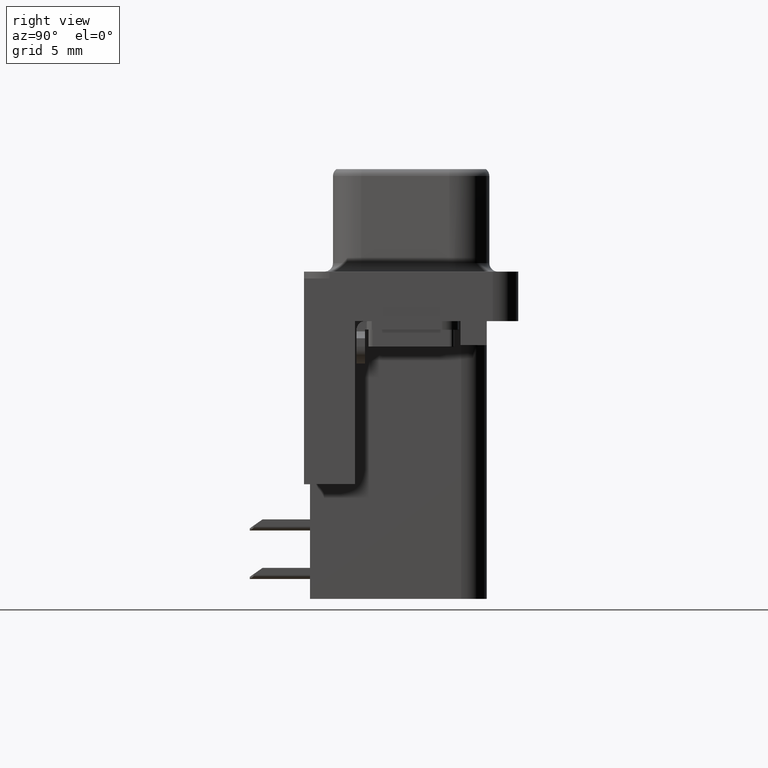
[diagram: clean part render]
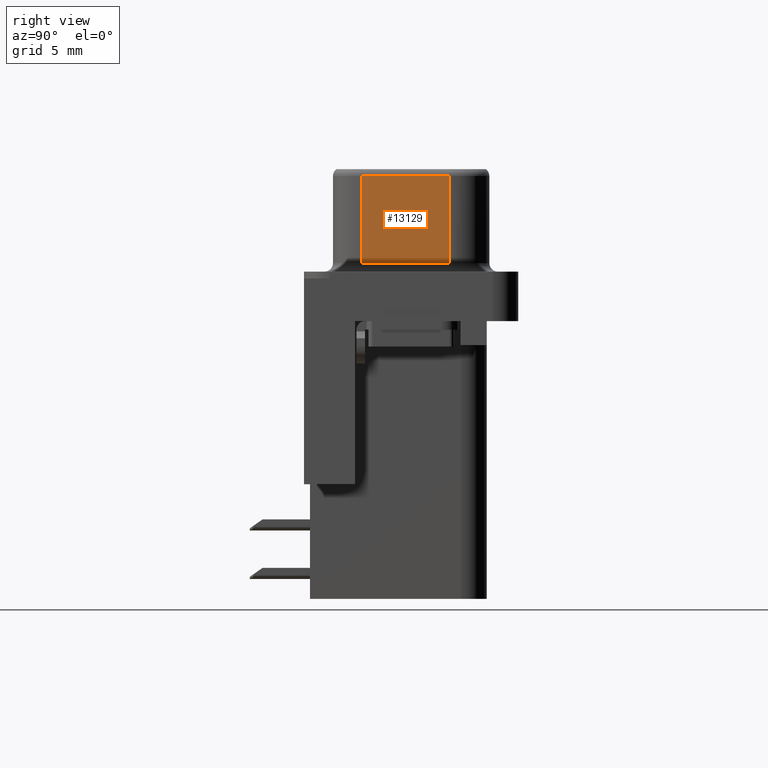
[diagram: same view with one face highlighted and labeled with its STEP entity id]
A machine part, right view. The second image highlights one B-rep face of the part: STEP entity #13129.
In plain terms, the highlighted planar face has unit normal (-0.9848, 0.1736, 0).
Its self-contained STEP definition (entity closure, byte-faithful):
#21 = CARTESIAN_POINT ( 'NONE',  ( 21.32461550602442200, 2.232703644666148300, 6.500000000000000000 ) ) ;
#278 = DIRECTION ( 'NONE',  ( -0.0000000000000000000, -0.0000000000000000000, -1.000000000000000000 ) ) ;
#1113 = DIRECTION ( 'NONE',  ( -0.1736481776669240900, -0.9848077530122092400, 0.0000000000000000000 ) ) ;
#1450 = VERTEX_POINT ( 'NONE', #4552 ) ;
#1752 = VECTOR ( 'NONE', #6478, 1000.000000000000000 ) ;
#2418 = CARTESIAN_POINT ( 'NONE',  ( 21.32461550602442200, 2.232703644666148300, 0.8999999999999998000 ) ) ;
#3370 = CARTESIAN_POINT ( 'NONE',  ( 21.32461550602442200, 2.232703644666148300, 0.8999999999999998000 ) ) ;
#4282 = CARTESIAN_POINT ( 'NONE',  ( 20.41476828556877600, -2.927296355333850900, 0.8999999999999998000 ) ) ;
#4552 = CARTESIAN_POINT ( 'NONE',  ( 21.32461550602442200, 2.232703644666148300, 6.000000000000000000 ) ) ;
#4631 = FACE_OUTER_BOUND ( 'NONE', #14023, .T. ) ;
#4686 = LINE ( 'NONE', #12882, #1752 ) ;
#4978 = VERTEX_POINT ( 'NONE', #3370 ) ;
#5037 = EDGE_CURVE ( 'NONE', #6297, #4978, #11294, .T. ) ;
#5419 = PLANE ( 'NONE',  #10755 ) ;
#5442 = ORIENTED_EDGE ( 'NONE', *, *, #10040, .T. ) ;
#6297 = VERTEX_POINT ( 'NONE', #4282 ) ;
#6478 = DIRECTION ( 'NONE',  ( -0.0000000000000000000, -0.0000000000000000000, -1.000000000000000000 ) ) ;
#6836 = CARTESIAN_POINT ( 'NONE',  ( 21.32461550602442200, 2.232703644666148300, 6.500000000000000000 ) ) ;
#7080 = EDGE_CURVE ( 'NONE', #7484, #6297, #4686, .T. ) ;
#7484 = VERTEX_POINT ( 'NONE', #10415 ) ;
#7634 = DIRECTION ( 'NONE',  ( -0.9848077530122092400, 0.1736481776669240900, 0.0000000000000000000 ) ) ;
#7814 = ORIENTED_EDGE ( 'NONE', *, *, #5037, .T. ) ;
#8032 = EDGE_CURVE ( 'NONE', #1450, #4978, #9705, .T. ) ;
#9630 = ORIENTED_EDGE ( 'NONE', *, *, #8032, .F. ) ;
#9705 = LINE ( 'NONE', #6836, #12881 ) ;
#9750 = LINE ( 'NONE', #13730, #12266 ) ;
#9934 = DIRECTION ( 'NONE',  ( 0.1736481776669240900, 0.9848077530122092400, -0.0000000000000000000 ) ) ;
#10040 = EDGE_CURVE ( 'NONE', #1450, #7484, #9750, .T. ) ;
#10383 = ORIENTED_EDGE ( 'NONE', *, *, #7080, .T. ) ;
#10415 = CARTESIAN_POINT ( 'NONE',  ( 20.41476828556877600, -2.927296355333850900, 6.000000000000000000 ) ) ;
#10755 = AXIS2_PLACEMENT_3D ( 'NONE', #21, #7634, #1113 ) ;
#11294 = LINE ( 'NONE', #2418, #11630 ) ;
#11552 = DIRECTION ( 'NONE',  ( -0.1736481776669240900, -0.9848077530122092400, -0.0000000000000000000 ) ) ;
#11630 = VECTOR ( 'NONE', #9934, 999.9999999999998900 ) ;
#12266 = VECTOR ( 'NONE', #11552, 999.9999999999998900 ) ;
#12881 = VECTOR ( 'NONE', #278, 1000.000000000000000 ) ;
#12882 = CARTESIAN_POINT ( 'NONE',  ( 20.41476828556877600, -2.927296355333850900, 6.500000000000000000 ) ) ;
#13129 = ADVANCED_FACE ( 'NONE', ( #4631 ), #5419, .F. ) ;
#13730 = CARTESIAN_POINT ( 'NONE',  ( 21.32461550602442200, 2.232703644666148300, 6.000000000000000000 ) ) ;
#14023 = EDGE_LOOP ( 'NONE', ( #9630, #5442, #10383, #7814 ) ) ;